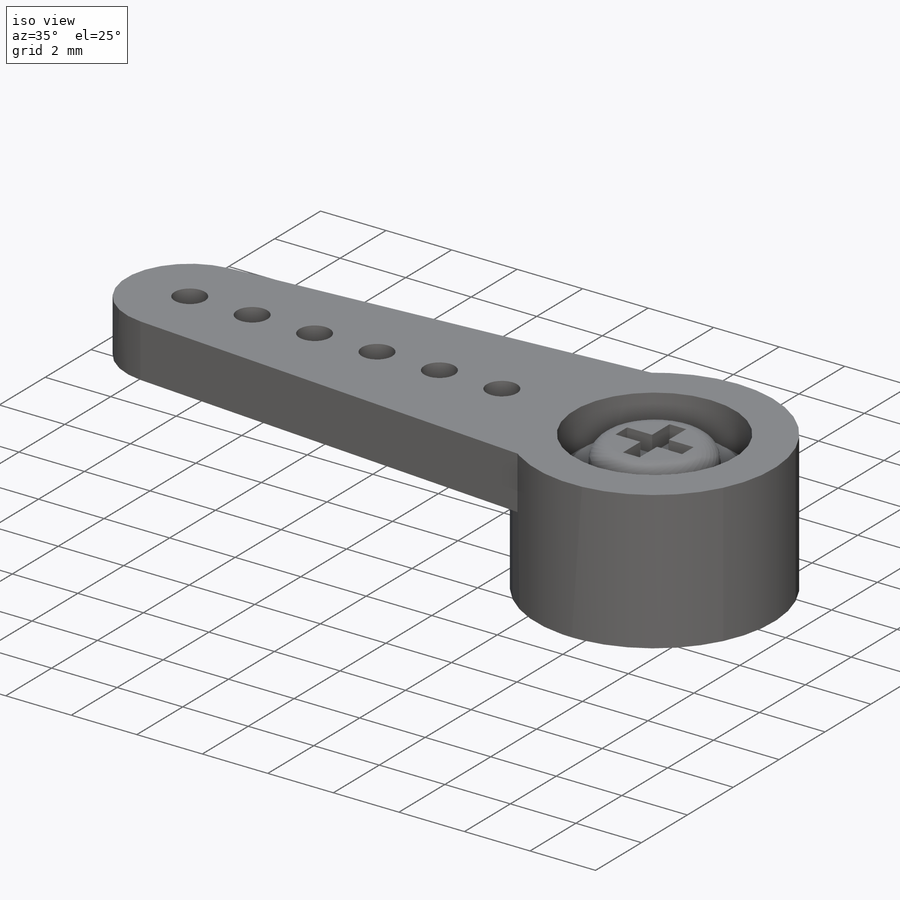
[diagram: iso view]
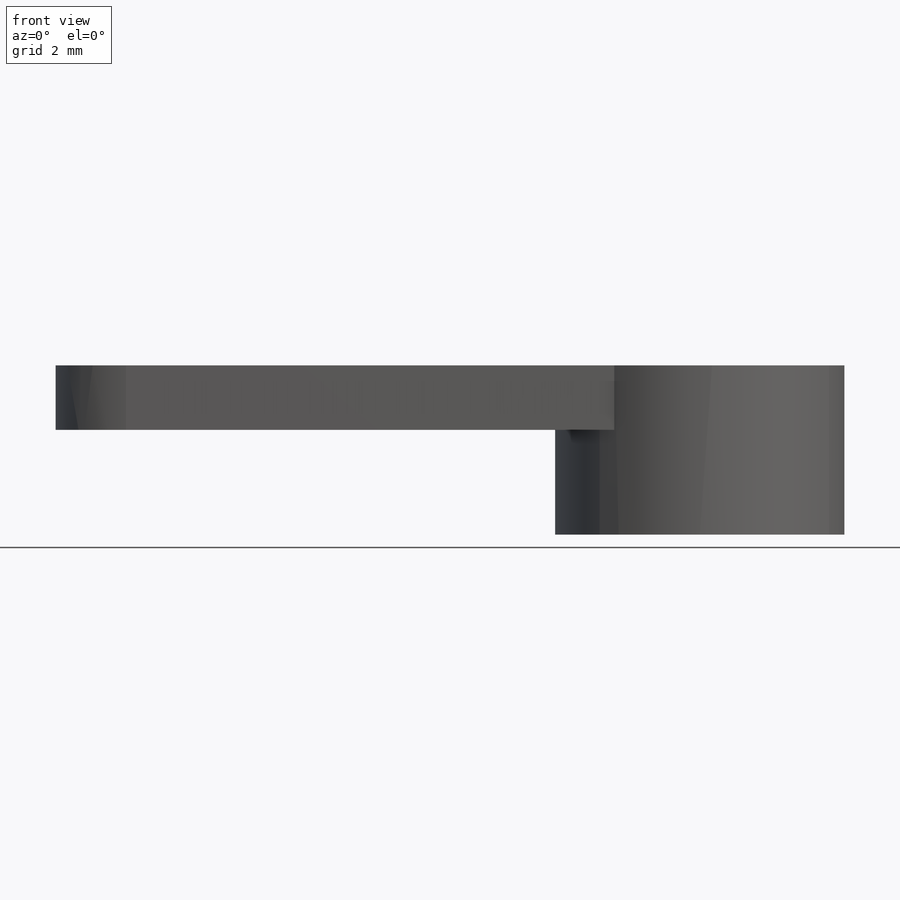
[diagram: front view]
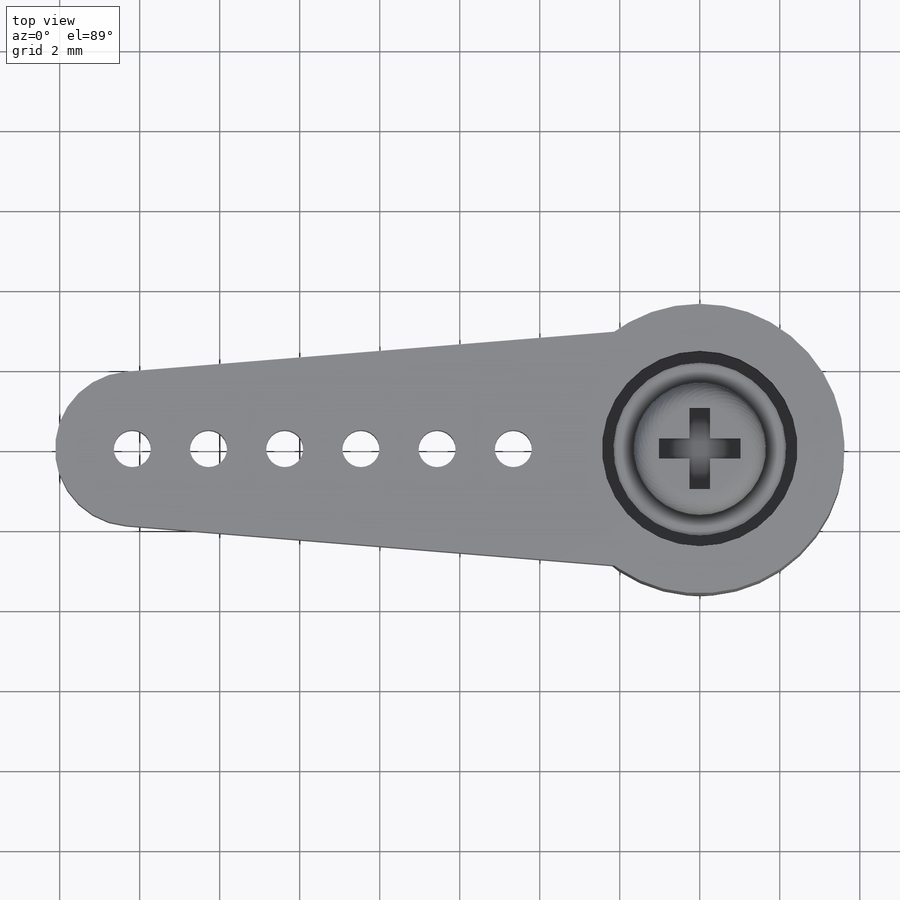
[diagram: top view]
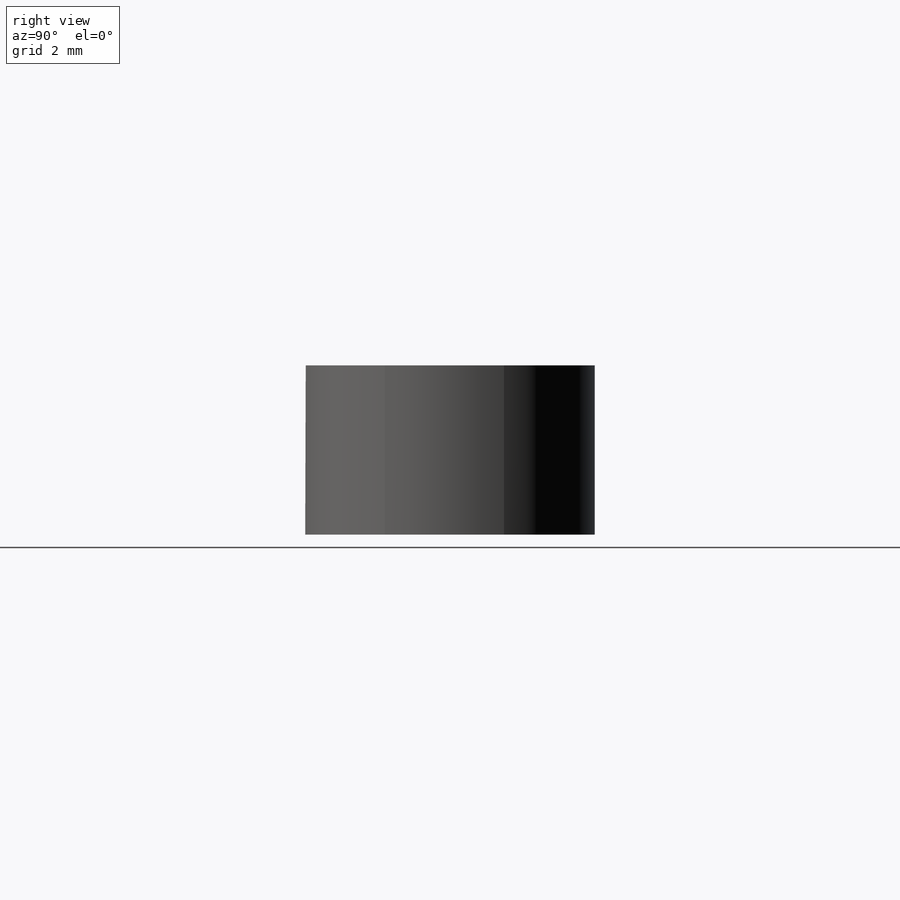
[diagram: right view]
SOLIDWORKS PART (.sldprt)
format: sldprt  version: not decoded by parser v0  size: 302,592 bytes
history: native  units: mm
features: sketch x8, extrude x4, cut_extrude x4, material x1, fillet x1 (+17 scaffold rows collapsed)
feature tree (35):
  scaffold x17  (default folders/planes/origin — collapsed)
  material  "Nylon 101"
  sketch  "Sketch18"  dims[c1.D1=1.9304mm c1.D2=3.6195mm c1.D3=5.6642mm c1.D4=19.7358mm c2.D3=19.7358mm c2.D4=5.842mm]
  extrude  "Extrude17"  Depth=1.6129mm
  sketch  "Sketch19"
  extrude  "Extrude19"  Depth=4.2291mm
  sketch  "Sketch20"  dims[D1=0.9271mm D3=2.54mm D2=1.905mm]
  cut_extrude  "Extrude20"  [1 undecoded]
  sketch  "Sketch21"  dims[D1=4.8895mm]
  cut_extrude  "Extrude21"  Depth=1.1557mm
  sketch  "Sketch22"  dims[D1=4.572mm]
  cut_extrude  "Extrude22"  Depth=2.3368mm
  sketch  "Sketch23"  dims[D1=4.318mm]
  extrude  "Extrude23"  Depth=0.2032mm
  sketch  "Sketch24"  dims[D1=3.302mm]
  extrude  "Extrude24"  Depth=0.762mm
  sketch  "Sketch25"  dims[D1=2.032mm D2=0.508mm]
  cut_extrude  "Extrude25"  Depth=0.508mm
  fillet  "Fillet1"  Radius=0.508mm
decode coverage: 15 of 17 modeling features carry decoded parameters
note: 1 parameter value undecoded
note: suppression state not decoded; provenance and decode notes live in map.json
